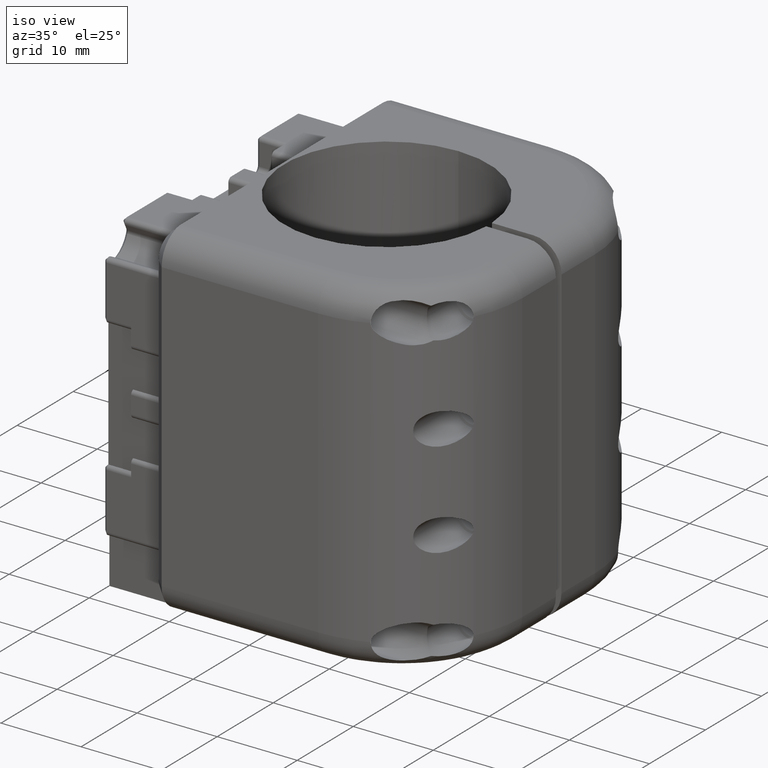
[diagram: clean part render]
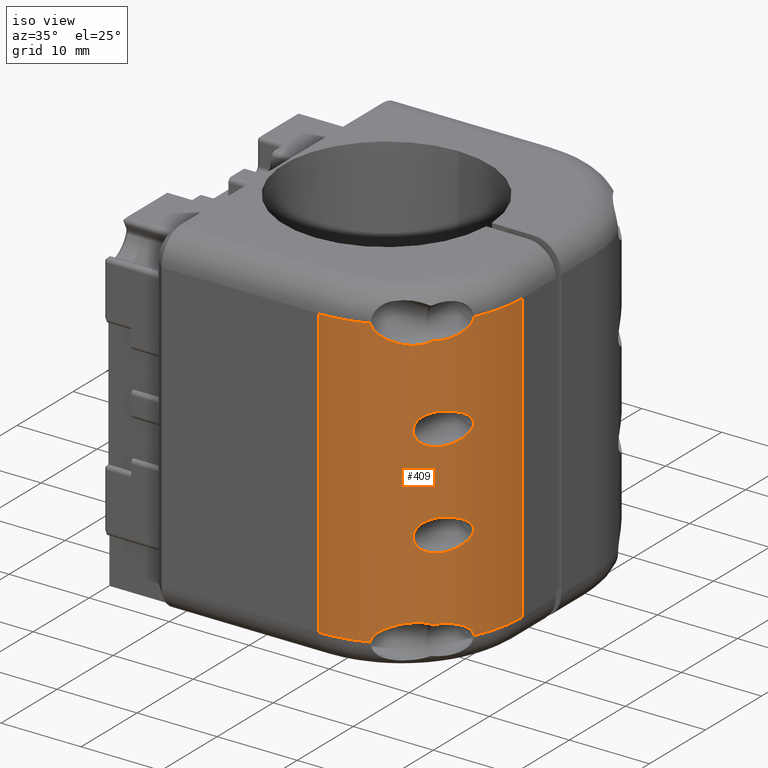
[diagram: same view with one face highlighted and labeled with its STEP entity id]
A machine part, iso view. The second image highlights one B-rep face of the part: STEP entity #409.
In plain terms, the highlighted cylindrical surface (partial cylindrical patch) has radius 15 mm, axis along (0, 0, 1).
Its self-contained STEP definition (entity closure, byte-faithful):
#189=CYLINDRICAL_SURFACE('',#8378,15.);
#284=FACE_BOUND('',#1196,.F.);
#285=FACE_BOUND('',#1197,.F.);
#409=ADVANCED_FACE('',(#284,#285,#797),#189,.T.);
#797=FACE_OUTER_BOUND('',#1198,.F.);
#1196=EDGE_LOOP('',(#2107,#2108));
#1197=EDGE_LOOP('',(#2109,#2110));
#1198=EDGE_LOOP('',(#2111,#2112,#2113,#2114,#2115,#2116,#2117,#2118,#2119,
#2120,#2121,#2122,#2123,#2124));
#2107=ORIENTED_EDGE('',*,*,#5018,.F.);
#2108=ORIENTED_EDGE('',*,*,#5017,.F.);
#2109=ORIENTED_EDGE('',*,*,#5014,.F.);
#2110=ORIENTED_EDGE('',*,*,#5013,.F.);
#2111=ORIENTED_EDGE('',*,*,#5452,.T.);
#2112=ORIENTED_EDGE('',*,*,#5238,.T.);
#2113=ORIENTED_EDGE('',*,*,#5402,.T.);
#2114=ORIENTED_EDGE('',*,*,#5401,.T.);
#2115=ORIENTED_EDGE('',*,*,#5031,.F.);
#2116=ORIENTED_EDGE('',*,*,#5032,.F.);
#2117=ORIENTED_EDGE('',*,*,#5236,.T.);
#2118=ORIENTED_EDGE('',*,*,#5451,.F.);
#2119=ORIENTED_EDGE('',*,*,#5237,.T.);
#2120=ORIENTED_EDGE('',*,*,#5024,.F.);
#2121=ORIENTED_EDGE('',*,*,#5025,.F.);
#2122=ORIENTED_EDGE('',*,*,#5386,.T.);
#2123=ORIENTED_EDGE('',*,*,#5385,.T.);
#2124=ORIENTED_EDGE('',*,*,#5235,.T.);
#4265=B_SPLINE_CURVE_WITH_KNOTS('',3,(#11922,#11923,#11924,#11925,#11926,
#11927,#11928,#11929,#11930,#11931,#11932,#11933,#11934,#11935,#11936,#11937,
#11938,#11939,#11940,#11941,#11942),.UNSPECIFIED.,.F.,.F.,(4,1,1,1,1,1,1,
1,1,1,1,1,1,1,1,1,1,1,4),(0.,0.0761269899847756,0.128273079170114,0.188720013484413,
0.246301950433154,0.301097779144919,0.353358480565253,0.403513585772713,
0.452153345328426,0.499999999999999,0.547846654671571,0.596486414227283,
0.646641519434743,0.698902220855077,0.753698049566843,0.811279986515586,
0.871726920829879,0.923873010015212,1.),.UNSPECIFIED.);
#4266=B_SPLINE_CURVE_WITH_KNOTS('',3,(#11943,#11944,#11945,#11946,#11947,
#11948,#11949,#11950,#11951,#11952,#11953,#11954,#11955,#11956,#11957,#11958,
#11959,#11960,#11961,#11962,#11963,#11964,#11965,#11966,#11967,#11968,#11969,
#11970,#11971,#11972,#11973,#11974),.UNSPECIFIED.,.F.,.F.,(4,1,1,1,1,1,1,
1,1,1,1,1,1,1,1,1,1,1,1,1,1,1,1,1,1,1,1,1,1,4),(0.,0.0429469975366083,0.0741021726461188,
0.1118108505106,0.149818126477393,0.187914848567911,0.225854702969499,0.263349846277426,
0.30007257898951,0.335658235878121,0.36972388974896,0.401930524623698,0.432071152174765,
0.460232026742434,0.486927465987973,0.513072534012024,0.539767973257566,
0.567928847825237,0.598069475376305,0.630276110251043,0.664341764121882,
0.699927421010492,0.736650153722574,0.774145297030501,0.812085151432089,
0.850181873522607,0.888189149489405,0.925897827353895,0.957053002463412,
1.),.UNSPECIFIED.);
#4267=B_SPLINE_CURVE_WITH_KNOTS('',3,(#11977,#11978,#11979,#11980,#11981,
#11982,#11983,#11984,#11985,#11986,#11987,#11988,#11989,#11990,#11991,#11992,
#11993,#11994,#11995,#11996,#11997),.UNSPECIFIED.,.F.,.F.,(4,1,1,1,1,1,1,
1,1,1,1,1,1,1,1,1,1,1,4),(0.,0.0761269899847815,0.128273079170118,0.188720013484414,
0.246301950433155,0.301097779144921,0.353358480565255,0.403513585772715,
0.452153345328427,0.5,0.547846654671572,0.596486414227285,0.646641519434745,
0.698902220855079,0.753698049566845,0.811279986515586,0.871726920829882,
0.923873010015219,1.),.UNSPECIFIED.);
#4268=B_SPLINE_CURVE_WITH_KNOTS('',3,(#11998,#11999,#12000,#12001,#12002,
#12003,#12004,#12005,#12006,#12007,#12008,#12009,#12010,#12011,#12012,#12013,
#12014,#12015,#12016,#12017,#12018,#12019,#12020,#12021,#12022,#12023,#12024,
#12025,#12026,#12027,#12028,#12029),.UNSPECIFIED.,.F.,.F.,(4,1,1,1,1,1,1,
1,1,1,1,1,1,1,1,1,1,1,1,1,1,1,1,1,1,1,1,1,1,4),(0.,0.0429469975365971,0.0741021726461106,
0.111810850510596,0.149818126477392,0.18791484856791,0.225854702969498,0.263349846277426,
0.300072578989509,0.33565823587812,0.369723889748959,0.401930524623696,0.432071152174762,
0.460232026742431,0.486927465987973,0.513072534012025,0.539767973257567,
0.567928847825238,0.598069475376305,0.630276110251043,0.664341764121882,
0.699927421010491,0.736650153722574,0.774145297030501,0.812085151432089,
0.850181873522607,0.888189149489404,0.92589782735389,0.957053002463404,1.),
 .UNSPECIFIED.);
#4272=B_SPLINE_CURVE_WITH_KNOTS('',3,(#12072,#12073,#12074,#12075,#12076,
#12077,#12078,#12079,#12080,#12081,#12082,#12083,#12084,#12085,#12086,#12087,
#12088,#12089),.UNSPECIFIED.,.F.,.F.,(4,1,1,1,1,1,1,1,1,1,1,1,1,1,1,4),(0.,
0.0829857574054046,0.143166541990602,0.216004952720595,0.289438536140862,
0.363096947852677,0.436546077552618,0.50928104835236,0.580722475704584,0.650230962088055,
0.717109317139344,0.780706563793149,0.840527729301581,0.896481211389921,
0.940872490292494,1.),.UNSPECIFIED.);
#4273=B_SPLINE_CURVE_WITH_KNOTS('',3,(#12090,#12091,#12092,#12093,#12094,
#12095),.UNSPECIFIED.,.F.,.F.,(4,1,1,4),(0.,0.383476227422829,0.60575598062326,
1.),.UNSPECIFIED.);
#4277=B_SPLINE_CURVE_WITH_KNOTS('',3,(#12138,#12139,#12140,#12141,#12142,
#12143),.UNSPECIFIED.,.F.,.F.,(4,1,1,4),(0.,0.394244011454865,0.616523764526628,
1.),.UNSPECIFIED.);
#4278=B_SPLINE_CURVE_WITH_KNOTS('',3,(#12144,#12145,#12146,#12147,#12148,
#12149,#12150,#12151,#12152,#12153,#12154,#12155,#12156,#12157,#12158,#12159,
#12160,#12161),.UNSPECIFIED.,.F.,.F.,(4,1,1,1,1,1,1,1,1,1,1,1,1,1,1,4),(0.,
0.0591275072476633,0.103518780722505,0.15947225532455,0.219293413801398,
0.282890655347336,0.349769007646698,0.419277493519487,0.490718922221461,
0.563453895763443,0.636903029200121,0.710561445275375,0.783995033381138,
0.856833448871846,0.917014237378119,1.),.UNSPECIFIED.);
#4297=B_SPLINE_CURVE_WITH_KNOTS('',3,(#12803,#12804,#12805,#12806,#12807,
#12808,#12809,#12810,#12811,#12812,#12813,#12814,#12815,#12816,#12817,#12818,
#12819,#12820,#12821),.UNSPECIFIED.,.F.,.F.,(4,1,1,1,1,1,1,1,1,1,1,1,1,1,
1,1,4),(0.,0.0755612686051898,0.130510153463519,0.197206690562665,0.264762838926564,
0.332934118335427,0.401426103733853,0.469883621867282,0.537878757936134,
0.604902631838051,0.67035074326233,0.733537822427086,0.793764066518765,0.850424630537873,
0.903225826199831,0.94491306890732,1.),.UNSPECIFIED.);
#4298=B_SPLINE_CURVE_WITH_KNOTS('',3,(#12822,#12823,#12824,#12825,#12826,
#12827,#12828),.UNSPECIFIED.,.F.,.F.,(4,1,1,1,4),(0.,0.277027679574042,0.483318168997728,
0.693799140587596,1.),.UNSPECIFIED.);
#4309=B_SPLINE_CURVE_WITH_KNOTS('',3,(#12944,#12945,#12946,#12947,#12948,
#12949,#12950),.UNSPECIFIED.,.F.,.F.,(4,1,1,1,4),(0.,0.306200835374131,0.516681638898747,
0.722971973026946,1.),.UNSPECIFIED.);
#4310=B_SPLINE_CURVE_WITH_KNOTS('',3,(#12951,#12952,#12953,#12954,#12955,
#12956,#12957,#12958,#12959,#12960,#12961,#12962,#12963,#12964,#12965,#12966,
#12967,#12968,#12969),.UNSPECIFIED.,.F.,.F.,(4,1,1,1,1,1,1,1,1,1,1,1,1,1,
1,1,4),(0.,0.0550869280215655,0.0967741651375973,0.149575353509302,0.206235911084351,
0.266462150780222,0.329649227698723,0.395097338836716,0.462121213999798,
0.5301163524532,0.598573873740906,0.667065862768665,0.735237146053694,0.802793298360223,
0.869489839325756,0.924438727307384,1.),.UNSPECIFIED.);
#4515=CIRCLE('',#8102,15.);
#4516=CIRCLE('',#8103,15.);
#4517=CIRCLE('',#8104,15.);
#4518=CIRCLE('',#8105,15.);
#5013=EDGE_CURVE('',#7539,#7538,#4265,.T.);
#5014=EDGE_CURVE('',#7538,#7539,#4266,.T.);
#5017=EDGE_CURVE('',#7535,#7534,#4267,.T.);
#5018=EDGE_CURVE('',#7534,#7535,#4268,.T.);
#5024=EDGE_CURVE('',#7527,#7528,#4272,.T.);
#5025=EDGE_CURVE('',#7530,#7527,#4273,.T.);
#5031=EDGE_CURVE('',#7520,#7524,#4277,.T.);
#5032=EDGE_CURVE('',#7521,#7520,#4278,.T.);
#5235=EDGE_CURVE('',#7411,#7410,#4515,.T.);
#5236=EDGE_CURVE('',#7521,#7409,#4516,.T.);
#5237=EDGE_CURVE('',#7408,#7528,#4517,.T.);
#5238=EDGE_CURVE('',#7407,#7406,#4518,.T.);
#5385=EDGE_CURVE('',#7318,#7411,#4297,.T.);
#5386=EDGE_CURVE('',#7530,#7318,#4298,.T.);
#5401=EDGE_CURVE('',#7331,#7524,#4309,.T.);
#5402=EDGE_CURVE('',#7406,#7331,#4310,.T.);
#5451=EDGE_CURVE('',#7408,#7409,#6195,.T.);
#5452=EDGE_CURVE('',#7410,#7407,#6196,.T.);
#6195=LINE('',#13018,#6877);
#6196=LINE('',#13019,#6878);
#6877=VECTOR('',#9700,36.);
#6878=VECTOR('',#9701,36.);
#7318=VERTEX_POINT('',#11043);
#7331=VERTEX_POINT('',#11056);
#7406=VERTEX_POINT('',#11131);
#7407=VERTEX_POINT('',#11132);
#7408=VERTEX_POINT('',#11133);
#7409=VERTEX_POINT('',#11134);
#7410=VERTEX_POINT('',#11135);
#7411=VERTEX_POINT('',#11136);
#7520=VERTEX_POINT('',#11245);
#7521=VERTEX_POINT('',#11246);
#7524=VERTEX_POINT('',#11249);
#7527=VERTEX_POINT('',#11252);
#7528=VERTEX_POINT('',#11253);
#7530=VERTEX_POINT('',#11255);
#7534=VERTEX_POINT('',#11259);
#7535=VERTEX_POINT('',#11260);
#7538=VERTEX_POINT('',#11263);
#7539=VERTEX_POINT('',#11264);
#8102=AXIS2_PLACEMENT_3D('',#12414,#9402,#9403);
#8103=AXIS2_PLACEMENT_3D('',#12415,#9404,#9405);
#8104=AXIS2_PLACEMENT_3D('',#12416,#9406,#9407);
#8105=AXIS2_PLACEMENT_3D('',#12417,#9408,#9409);
#8378=AXIS2_PLACEMENT_3D('',#13472,#10306,#10307);
#9402=DIRECTION('',(0.,0.,-1.));
#9403=DIRECTION('',(0.384088842626384,-0.923296139366956,0.));
#9404=DIRECTION('',(0.,0.,1.));
#9405=DIRECTION('',(0.899979915206817,-0.435931361826985,0.));
#9406=DIRECTION('',(0.,0.,-1.));
#9407=DIRECTION('',(1.,0.,0.));
#9408=DIRECTION('',(0.,0.,1.));
#9409=DIRECTION('',(0.,-1.,0.));
#9700=DIRECTION('',(0.,0.,1.));
#9701=DIRECTION('',(0.,0.,1.));
#10306=DIRECTION('',(0.,0.,1.));
#10307=DIRECTION('',(0.,-1.,0.));
#11043=CARTESIAN_POINT('',(89.2956900835894,-17.9999883141655,-15.6500000218657));
#11056=CARTESIAN_POINT('',(89.295690083719,-17.9999883141112,15.6499999780935));
#11131=CARTESIAN_POINT('',(85.4258748264123,-20.3496283990842,18.0000003735002));
#11132=CARTESIAN_POINT('',(79.6650000120302,-21.4999958811693,18.0000003689841));
#11133=CARTESIAN_POINT('',(94.6650000120301,-6.49999588116915,-17.9999996310159));
#11134=CARTESIAN_POINT('',(94.6650000120301,-6.49999588116891,18.0000003689841));
#11135=CARTESIAN_POINT('',(79.6650000120302,-21.4999958811693,-17.9999996310159));
#11136=CARTESIAN_POINT('',(85.4258838885993,-20.3496246302812,-17.9999996325244));
#11245=CARTESIAN_POINT('',(91.1649958473061,-16.130681321269,15.9999999781177));
#11246=CARTESIAN_POINT('',(93.1648004041812,-13.0387564107569,18.000000366607));
#11249=CARTESIAN_POINT('',(90.6852558505876,-16.6761546260865,16.0583835100939));
#11252=CARTESIAN_POINT('',(91.1649958473061,-16.130681321269,-16.0000000218857));
#11253=CARTESIAN_POINT('',(93.1648041691173,-13.0387486371084,-17.9999996250659));
#11255=CARTESIAN_POINT('',(90.6852554012552,-16.67615506189,-16.0583836644372));
#11259=CARTESIAN_POINT('',(91.1649958473061,-16.130681321269,-4.00000002188567));
#11260=CARTESIAN_POINT('',(91.1649958473061,-16.130681321269,-8.00000002188236));
#11263=CARTESIAN_POINT('',(91.1649958473061,-16.130681321269,7.99999997811435));
#11264=CARTESIAN_POINT('',(91.1649958473061,-16.130681321269,3.99999997811763));
#11922=CARTESIAN_POINT('',(91.1649954680522,-16.1306814493035,3.99999997810347));
#11923=CARTESIAN_POINT('',(91.0402075509005,-16.2797124476108,4.00002357500766));
#11924=CARTESIAN_POINT('',(90.8249698325958,-16.5267218200177,4.0195768575057));
#11925=CARTESIAN_POINT('',(90.5012581487732,-16.8747118699709,4.1050844149527));
#11926=CARTESIAN_POINT('',(90.2088216706472,-17.1718057193843,4.23230060396075));
#11927=CARTESIAN_POINT('',(89.9199696395626,-17.4490672482924,4.42196615490117));
#11928=CARTESIAN_POINT('',(89.663649940097,-17.6830338823065,4.66289679284025));
#11929=CARTESIAN_POINT('',(89.4500003801282,-17.8698615670055,4.9502807382964));
#11930=CARTESIAN_POINT('',(89.2886349034029,-18.0062997373944,5.27636809362938));
#11931=CARTESIAN_POINT('',(89.1879003215264,-18.0894987931775,5.63069487591853));
#11932=CARTESIAN_POINT('',(89.1536714024165,-18.1174139270488,5.99999997811599));
#11933=CARTESIAN_POINT('',(89.1879003215265,-18.0894987931775,6.36930508031344));
#11934=CARTESIAN_POINT('',(89.288634903403,-18.0062997373945,6.7236318626026));
#11935=CARTESIAN_POINT('',(89.4500003801282,-17.8698615670054,7.04971921793555));
#11936=CARTESIAN_POINT('',(89.6636499400971,-17.6830338823065,7.33710316339173));
#11937=CARTESIAN_POINT('',(89.9199696395625,-17.4490672482924,7.57803380133082));
#11938=CARTESIAN_POINT('',(90.2088216706473,-17.1718057193844,7.76769935227119));
#11939=CARTESIAN_POINT('',(90.5012581487731,-16.8747118699709,7.89491554127926));
#11940=CARTESIAN_POINT('',(90.8249698325959,-16.5267218200178,7.98042309872633));
#11941=CARTESIAN_POINT('',(91.0402075509005,-16.2797124476109,7.99997638122436));
#11942=CARTESIAN_POINT('',(91.1649954680522,-16.1306814493035,7.9999999781285));
#11943=CARTESIAN_POINT('',(91.1649956288511,-16.1306812572629,7.9999999781008));
#11944=CARTESIAN_POINT('',(91.2479570571559,-16.0316162587895,7.99999674476033));
#11945=CARTESIAN_POINT('',(91.3888549235652,-15.8588765499252,7.99111459538456));
#11946=CARTESIAN_POINT('',(91.5946415457749,-15.5947992391614,7.95644014500852));
#11947=CARTESIAN_POINT('',(91.78468818537,-15.3402849088004,7.90535929564033));
#11948=CARTESIAN_POINT('',(91.978732240315,-15.0679016827517,7.83091640935852));
#11949=CARTESIAN_POINT('',(92.1642482465888,-14.7948398748213,7.73666068939667));
#11950=CARTESIAN_POINT('',(92.3395763912618,-14.5242547390748,7.62326710721476));
#11951=CARTESIAN_POINT('',(92.5030583435844,-14.259831941013,7.49145340479067));
#11952=CARTESIAN_POINT('',(92.6530217662054,-14.0058914292439,7.34198356944968));
#11953=CARTESIAN_POINT('',(92.7877416612495,-13.7674841142517,7.1756712223454));
#11954=CARTESIAN_POINT('',(92.9054450769479,-13.5503422788555,6.99345933306716));
#11955=CARTESIAN_POINT('',(93.0043050770397,-13.3611692267976,6.79595016373284));
#11956=CARTESIAN_POINT('',(93.0822878418371,-13.2070973067079,6.58403432214119));
#11957=CARTESIAN_POINT('',(93.1373178312415,-13.0952493021554,6.35866017004169));
#11958=CARTESIAN_POINT('',(93.1659807715574,-13.0366574003518,6.12109851156196));
#11959=CARTESIAN_POINT('',(93.1659807715574,-13.0366574003518,5.87890144467001));
#11960=CARTESIAN_POINT('',(93.1373178312415,-13.0952493021554,5.64133978619027));
#11961=CARTESIAN_POINT('',(93.082287841837,-13.2070973067079,5.41596563409076));
#11962=CARTESIAN_POINT('',(93.0043050770397,-13.3611692267976,5.2040497924991));
#11963=CARTESIAN_POINT('',(92.9054450769479,-13.5503422788555,5.00654062316478));
#11964=CARTESIAN_POINT('',(92.7877416612496,-13.7674841142517,4.82432873388651));
#11965=CARTESIAN_POINT('',(92.6530217662054,-14.0058914292439,4.65801638678226));
#11966=CARTESIAN_POINT('',(92.5030583435844,-14.259831941013,4.5085465514413));
#11967=CARTESIAN_POINT('',(92.3395763912617,-14.5242547390749,4.37673284901721));
#11968=CARTESIAN_POINT('',(92.1642482465888,-14.7948398748213,4.26333926683528));
#11969=CARTESIAN_POINT('',(91.978732240315,-15.0679016827517,4.16908354687338));
#11970=CARTESIAN_POINT('',(91.78468818537,-15.3402849088004,4.09464066059163));
#11971=CARTESIAN_POINT('',(91.5946415457749,-15.5947992391616,4.04355981122347));
#11972=CARTESIAN_POINT('',(91.3888549235653,-15.8588765499253,4.00888536084738));
#11973=CARTESIAN_POINT('',(91.2479570571559,-16.0316162587895,4.00000321147164));
#11974=CARTESIAN_POINT('',(91.1649956288511,-16.1306812572629,3.99999997813117));
#11977=CARTESIAN_POINT('',(91.1649954680522,-16.1306814493035,-8.00000002189654));
#11978=CARTESIAN_POINT('',(91.0402075509005,-16.2797124476108,-7.99997642499238));
#11979=CARTESIAN_POINT('',(90.8249698325959,-16.5267218200177,-7.9804231424943));
#11980=CARTESIAN_POINT('',(90.5012581487732,-16.8747118699709,-7.8949155850473));
#11981=CARTESIAN_POINT('',(90.2088216706473,-17.1718057193843,-7.76769939603921));
#11982=CARTESIAN_POINT('',(89.9199696395625,-17.4490672482924,-7.57803384509887));
#11983=CARTESIAN_POINT('',(89.6636499400971,-17.6830338823065,-7.33710320715974));
#11984=CARTESIAN_POINT('',(89.4500003801282,-17.8698615670054,-7.04971926170359));
#11985=CARTESIAN_POINT('',(89.288634903403,-18.0062997373945,-6.72363190637063));
#11986=CARTESIAN_POINT('',(89.1879003215265,-18.0894987931775,-6.36930512408147));
#11987=CARTESIAN_POINT('',(89.1536714024166,-18.1174139270488,-6.00000002188402));
#11988=CARTESIAN_POINT('',(89.1879003215265,-18.0894987931775,-5.63069491968657));
#11989=CARTESIAN_POINT('',(89.288634903403,-18.0062997373945,-5.2763681373974));
#11990=CARTESIAN_POINT('',(89.4500003801282,-17.8698615670054,-4.95028078206444));
#11991=CARTESIAN_POINT('',(89.6636499400971,-17.6830338823065,-4.66289683660828));
#11992=CARTESIAN_POINT('',(89.9199696395625,-17.4490672482924,-4.42196619866917));
#11993=CARTESIAN_POINT('',(90.2088216706472,-17.1718057193844,-4.23230064772881));
#11994=CARTESIAN_POINT('',(90.5012581487732,-16.8747118699709,-4.10508445872071));
#11995=CARTESIAN_POINT('',(90.8249698325958,-16.5267218200178,-4.01957690127374));
#11996=CARTESIAN_POINT('',(91.0402075509005,-16.2797124476108,-4.00002361877563));
#11997=CARTESIAN_POINT('',(91.1649954680522,-16.1306814493035,-4.00000002187149));
#11998=CARTESIAN_POINT('',(91.1649956288511,-16.1306812572629,-4.00000002189922));
#11999=CARTESIAN_POINT('',(91.2479570571559,-16.0316162587895,-4.00000325523966));
#12000=CARTESIAN_POINT('',(91.3888549235653,-15.8588765499252,-4.0088854046155));
#12001=CARTESIAN_POINT('',(91.5946415457749,-15.5947992391615,-4.04355985499146));
#12002=CARTESIAN_POINT('',(91.78468818537,-15.3402849088004,-4.09464070435967));
#12003=CARTESIAN_POINT('',(91.978732240315,-15.0679016827517,-4.16908359064146));
#12004=CARTESIAN_POINT('',(92.1642482465888,-14.7948398748213,-4.26333931060331));
#12005=CARTESIAN_POINT('',(92.3395763912618,-14.5242547390749,-4.37673289278523));
#12006=CARTESIAN_POINT('',(92.5030583435844,-14.259831941013,-4.50854659520935));
#12007=CARTESIAN_POINT('',(92.6530217662054,-14.0058914292439,-4.65801643055034));
#12008=CARTESIAN_POINT('',(92.7877416612495,-13.7674841142517,-4.82432877765455));
#12009=CARTESIAN_POINT('',(92.9054450769479,-13.5503422788555,-5.00654066693282));
#12010=CARTESIAN_POINT('',(93.0043050770397,-13.3611692267976,-5.20404983626714));
#12011=CARTESIAN_POINT('',(93.0822878418371,-13.2070973067079,-5.41596567785878));
#12012=CARTESIAN_POINT('',(93.1373178312415,-13.0952493021554,-5.64133982995829));
#12013=CARTESIAN_POINT('',(93.1659807715574,-13.0366574003518,-5.87890148843803));
#12014=CARTESIAN_POINT('',(93.1659807715573,-13.0366574003518,-6.12109855532999));
#12015=CARTESIAN_POINT('',(93.1373178312416,-13.0952493021554,-6.35866021380974));
#12016=CARTESIAN_POINT('',(93.082287841837,-13.2070973067079,-6.58403436590924));
#12017=CARTESIAN_POINT('',(93.0043050770397,-13.3611692267976,-6.79595020750089));
#12018=CARTESIAN_POINT('',(92.9054450769479,-13.5503422788555,-6.99345937683522));
#12019=CARTESIAN_POINT('',(92.7877416612495,-13.7674841142517,-7.17567126611347));
#12020=CARTESIAN_POINT('',(92.6530217662054,-14.0058914292439,-7.34198361321771));
#12021=CARTESIAN_POINT('',(92.5030583435844,-14.259831941013,-7.49145344855869));
#12022=CARTESIAN_POINT('',(92.3395763912617,-14.5242547390749,-7.6232671509828));
#12023=CARTESIAN_POINT('',(92.1642482465889,-14.7948398748213,-7.73666073316471));
#12024=CARTESIAN_POINT('',(91.978732240315,-15.0679016827517,-7.83091645312659));
#12025=CARTESIAN_POINT('',(91.78468818537,-15.3402849088004,-7.90535933940837));
#12026=CARTESIAN_POINT('',(91.5946415457749,-15.5947992391615,-7.9564401887766));
#12027=CARTESIAN_POINT('',(91.3888549235653,-15.8588765499253,-7.99111463915262));
#12028=CARTESIAN_POINT('',(91.2479570571559,-16.0316162587895,-7.99999678852834));
#12029=CARTESIAN_POINT('',(91.1649956288512,-16.1306812572629,-8.00000002186882));
#12072=CARTESIAN_POINT('',(91.1649956288512,-16.1306812572629,-16.0000000218992));
#12073=CARTESIAN_POINT('',(91.245158220657,-16.0349582325541,-16.0000027144177));
#12074=CARTESIAN_POINT('',(91.3813588739732,-15.8681266722721,-16.0082961290487));
#12075=CARTESIAN_POINT('',(91.5805256941808,-15.6131696540803,-16.0407167236281));
#12076=CARTESIAN_POINT('',(91.7647186030505,-15.3674617956204,-16.0885065393755));
#12077=CARTESIAN_POINT('',(91.9531933609117,-15.1043547893714,-16.1582012196523));
#12078=CARTESIAN_POINT('',(92.133914258916,-14.8402438450622,-16.2465078725));
#12079=CARTESIAN_POINT('',(92.3053770366902,-14.5779116427751,-16.3528248142868));
#12080=CARTESIAN_POINT('',(92.4660824013247,-14.3206014942759,-16.4765187240492));
#12081=CARTESIAN_POINT('',(92.6145150517055,-14.0720643441521,-16.6168907653468));
#12082=CARTESIAN_POINT('',(92.7491429890087,-13.8367604135219,-16.7732778692914));
#12083=CARTESIAN_POINT('',(92.8683370257715,-13.6196287706451,-16.9447660542503));
#12084=CARTESIAN_POINT('',(92.9704817333566,-13.4265584473422,-17.1307314707949));
#12085=CARTESIAN_POINT('',(93.0537720406628,-13.2639298140016,-17.3305043968182));
#12086=CARTESIAN_POINT('',(93.1132763816019,-13.144341670114,-17.5324626664568));
#12087=CARTESIAN_POINT('',(93.1543592565616,-13.0603368839124,-17.755433375449));
#12088=CARTESIAN_POINT('',(93.1648851740686,-13.0389241218135,-17.9109207487807));
#12089=CARTESIAN_POINT('',(93.1648475925852,-13.0389922583504,-17.9999996256331));
#12090=CARTESIAN_POINT('',(90.685215097149,-16.6761869384419,-16.0583987659349));
#12091=CARTESIAN_POINT('',(90.7476268282282,-16.6085983322027,-16.0429792715821));
#12092=CARTESIAN_POINT('',(90.8457910675205,-16.5003157072374,-16.0237600291647));
#12093=CARTESIAN_POINT('',(91.0060493130407,-16.3182412172732,-16.004438803262));
#12094=CARTESIAN_POINT('',(91.1034284984137,-16.2042030486227,-16.0000001552874));
#12095=CARTESIAN_POINT('',(91.1649954680522,-16.1306814493035,-16.0000000218715));
#12138=CARTESIAN_POINT('',(91.1649954680522,-16.1306814493035,15.9999999781035));
#12139=CARTESIAN_POINT('',(91.1034285781225,-16.204202953428,16.0000001115164));
#12140=CARTESIAN_POINT('',(91.0060495195775,-16.318240976457,16.0044387480373));
#12141=CARTESIAN_POINT('',(90.8457914828849,-16.5003152407873,16.0237599232543));
#12142=CARTESIAN_POINT('',(90.747627370657,-16.6085977364729,16.0429791150152));
#12143=CARTESIAN_POINT('',(90.6852157195086,-16.6761862644541,16.0583985683858));
#12144=CARTESIAN_POINT('',(93.1648475925852,-13.0389922583504,18.0000003743669));
#12145=CARTESIAN_POINT('',(93.1648852089661,-13.0389240508371,17.9109214858217));
#12146=CARTESIAN_POINT('',(93.1543593498316,-13.0603366932422,17.7554340749183));
#12147=CARTESIAN_POINT('',(93.1132765418088,-13.1443413441961,17.5324632785697));
#12148=CARTESIAN_POINT('',(93.0537722469303,-13.2639294053341,17.3305049285342));
#12149=CARTESIAN_POINT('',(92.9704819731153,-13.4265579866016,17.1307319203403));
#12150=CARTESIAN_POINT('',(92.8683372856745,-13.6196282884001,16.944766426134));
#12151=CARTESIAN_POINT('',(92.7491432572773,-13.8367599351224,16.7732781689002));
#12152=CARTESIAN_POINT('',(92.6145153178562,-14.0720638894381,16.6168909979771));
#12153=CARTESIAN_POINT('',(92.4660826558883,-14.3206010781693,16.4765188954535));
#12154=CARTESIAN_POINT('',(92.3053772714288,-14.5779112761912,16.3528249310406));
#12155=CARTESIAN_POINT('',(92.1339144666546,-14.840243535333,16.2465079416928));
#12156=CARTESIAN_POINT('',(91.9531935355106,-15.1043545409317,16.1582012488877));
#12157=CARTESIAN_POINT('',(91.7647187393927,-15.3674616104923,16.0885065367397));
#12158=CARTESIAN_POINT('',(91.5805257904657,-15.6131695289616,16.0407166989163));
#12159=CARTESIAN_POINT('',(91.3813589250617,-15.8681266092648,16.008296089227));
#12160=CARTESIAN_POINT('',(91.2451582397259,-16.0349582097846,16.0000026706531));
#12161=CARTESIAN_POINT('',(91.1649956288511,-16.1306812572629,15.9999999781312));
#12414=CARTESIAN_POINT('',(79.6650000120301,-6.49999588116935,-17.9999996310159));
#12415=CARTESIAN_POINT('',(79.6650000120301,-6.49999588116933,18.0000003689841));
#12416=CARTESIAN_POINT('',(79.6650000120301,-6.49999588116935,-17.9999996310159));
#12417=CARTESIAN_POINT('',(79.6650000120301,-6.49999588116933,18.0000003689841));
#12803=CARTESIAN_POINT('',(89.2956879186981,-17.9999893787427,-15.6500000218791));
#12804=CARTESIAN_POINT('',(89.190126146533,-18.0883914611746,-15.6500025156099));
#12805=CARTESIAN_POINT('',(89.0057340179768,-18.2385351926313,-15.6585989580811));
#12806=CARTESIAN_POINT('',(88.7228744611659,-18.4578977248905,-15.6920418019743));
#12807=CARTESIAN_POINT('',(88.4485616032854,-18.6611111841702,-15.74131811037));
#12808=CARTESIAN_POINT('',(88.1525823922024,-18.8694979956217,-15.8130758355111));
#12809=CARTESIAN_POINT('',(87.8524513636891,-19.070150868487,-15.9039429006573));
#12810=CARTESIAN_POINT('',(87.5505067806175,-19.2616912616348,-16.0133227602302));
#12811=CARTESIAN_POINT('',(87.2495161214622,-19.442766813844,-16.1406106151865));
#12812=CARTESIAN_POINT('',(86.9527918097188,-19.6120337076605,-16.2852091044119));
#12813=CARTESIAN_POINT('',(86.6643569822998,-19.7681221576251,-16.4465480761201));
#12814=CARTESIAN_POINT('',(86.3890392684439,-19.9095850000884,-16.623997523947));
#12815=CARTESIAN_POINT('',(86.1326476734116,-20.0349147966319,-16.8169676298191));
#12816=CARTESIAN_POINT('',(85.9019840229387,-20.1425230277418,-17.0249077075735));
#12817=CARTESIAN_POINT('',(85.7050353283267,-20.2306542670459,-17.2476140848906));
#12818=CARTESIAN_POINT('',(85.5577449694991,-20.2941544855277,-17.4731096145045));
#12819=CARTESIAN_POINT('',(85.4531502292919,-20.3383380342089,-17.7234830361135));
#12820=CARTESIAN_POINT('',(85.4262851101924,-20.3497597824085,-17.8994575667442));
#12821=CARTESIAN_POINT('',(85.4263795818975,-20.3497134380592,-17.9999996264993));
#12822=CARTESIAN_POINT('',(90.6852810180074,-16.6761143817523,-16.0583936723082));
#12823=CARTESIAN_POINT('',(90.5743094465064,-16.7963125761655,-15.9764383131199));
#12824=CARTESIAN_POINT('',(90.3691406120187,-17.0114890246703,-15.858180374108));
#12825=CARTESIAN_POINT('',(90.0527879482858,-17.3235191998279,-15.7431306993699));
#12826=CARTESIAN_POINT('',(89.7077594239987,-17.6458555159421,-15.6680771387306));
#12827=CARTESIAN_POINT('',(89.4506798547905,-17.8702100630017,-15.6500122685429));
#12828=CARTESIAN_POINT('',(89.2956911660342,-17.9999866593319,-15.6500000218631));
#12944=CARTESIAN_POINT('',(89.2956911662285,-17.9999866591691,15.6499999780908));
#12945=CARTESIAN_POINT('',(89.4506799082658,-17.8702100184673,15.6500122299129));
#12946=CARTESIAN_POINT('',(89.7077594798421,-17.6458554421663,15.6680770105085));
#12947=CARTESIAN_POINT('',(90.0527879999928,-17.3235191483894,15.7431306098257));
#12948=CARTESIAN_POINT('',(90.3691407338317,-17.0114889379011,15.8581808616342));
#12949=CARTESIAN_POINT('',(90.5743096700474,-16.796312309892,15.9764388983593));
#12950=CARTESIAN_POINT('',(90.6852816501182,-16.6761137185292,16.058393775827));
#12951=CARTESIAN_POINT('',(85.4263795818975,-20.3497134380592,18.0000003735007));
#12952=CARTESIAN_POINT('',(85.4262850318582,-20.3497598156873,17.8994583050996));
#12953=CARTESIAN_POINT('',(85.4531500174028,-20.3383381238243,17.7234837388604));
#12954=CARTESIAN_POINT('',(85.5577446076648,-20.2941546391802,17.4731102275934));
#12955=CARTESIAN_POINT('',(85.7050348792002,-20.2306544642274,17.2476146192323));
#12956=CARTESIAN_POINT('',(85.9019835201912,-20.1425232573973,17.02490816385));
#12957=CARTESIAN_POINT('',(86.1326471492139,-20.0349150469583,16.8169680130515));
#12958=CARTESIAN_POINT('',(86.3890387485868,-19.9095852608709,16.6239978393396));
#12959=CARTESIAN_POINT('',(86.664356486215,-19.7681224195926,16.4465483282155));
#12960=CARTESIAN_POINT('',(86.9527913518458,-19.6120339624921,16.285209298163));
#12961=CARTESIAN_POINT('',(87.2495157121056,-19.4427670542347,16.1406107561721));
#12962=CARTESIAN_POINT('',(87.5505064264359,-19.2616914810576,16.0133228541807));
#12963=CARTESIAN_POINT('',(87.8524510686996,-19.0701510612556,15.9039429537896));
#12964=CARTESIAN_POINT('',(88.1525821582645,-18.8694981568336,15.8130758544009));
#12965=CARTESIAN_POINT('',(88.4485614305157,-18.6611113096563,15.7413181019369));
#12966=CARTESIAN_POINT('',(88.7228743451984,-18.4578978133434,15.6920417745879));
#12967=CARTESIAN_POINT('',(89.0057339598849,-18.2385352395782,15.6585989177215));
#12968=CARTESIAN_POINT('',(89.1901261256075,-18.0883914786992,15.6500024718405));
#12969=CARTESIAN_POINT('',(89.2956879186981,-17.9999893787427,15.6499999781069));
#13018=CARTESIAN_POINT('',(94.6650000120302,-6.49999588116935,-17.9999996310159));
#13019=CARTESIAN_POINT('',(79.6650000120302,-21.4999958811693,-17.9999996310159));
#13472=CARTESIAN_POINT('',(79.6650000120302,-6.4999958811694,-112.624999631016));